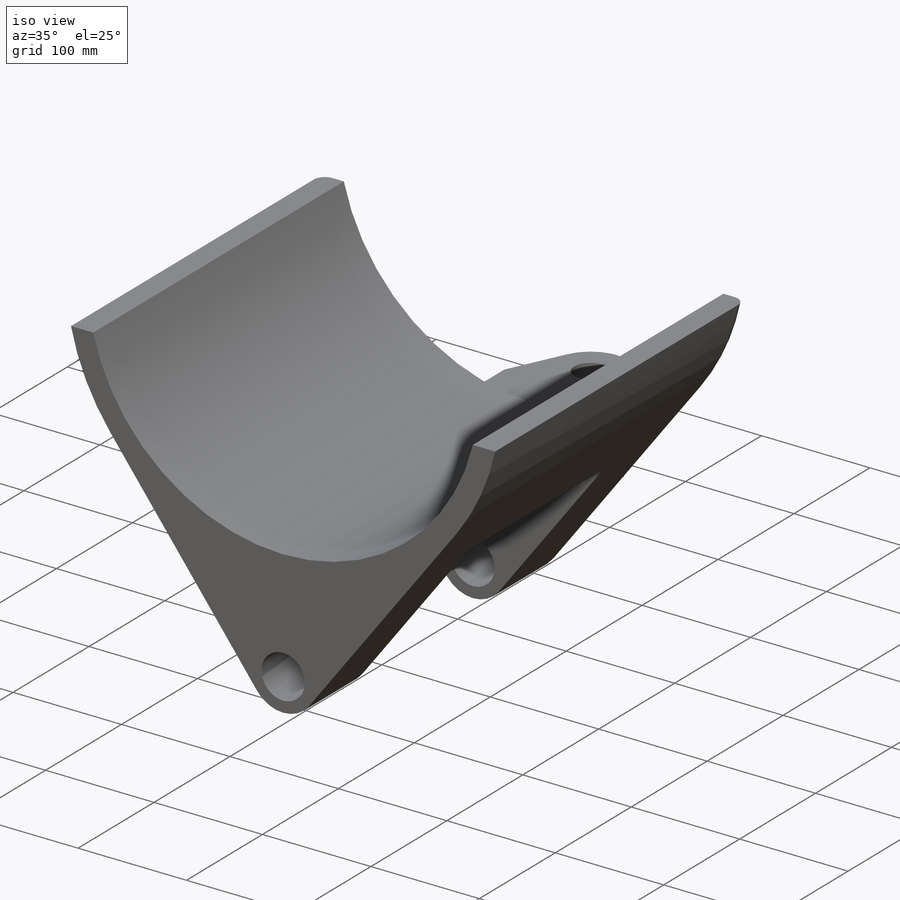
[diagram: iso view]
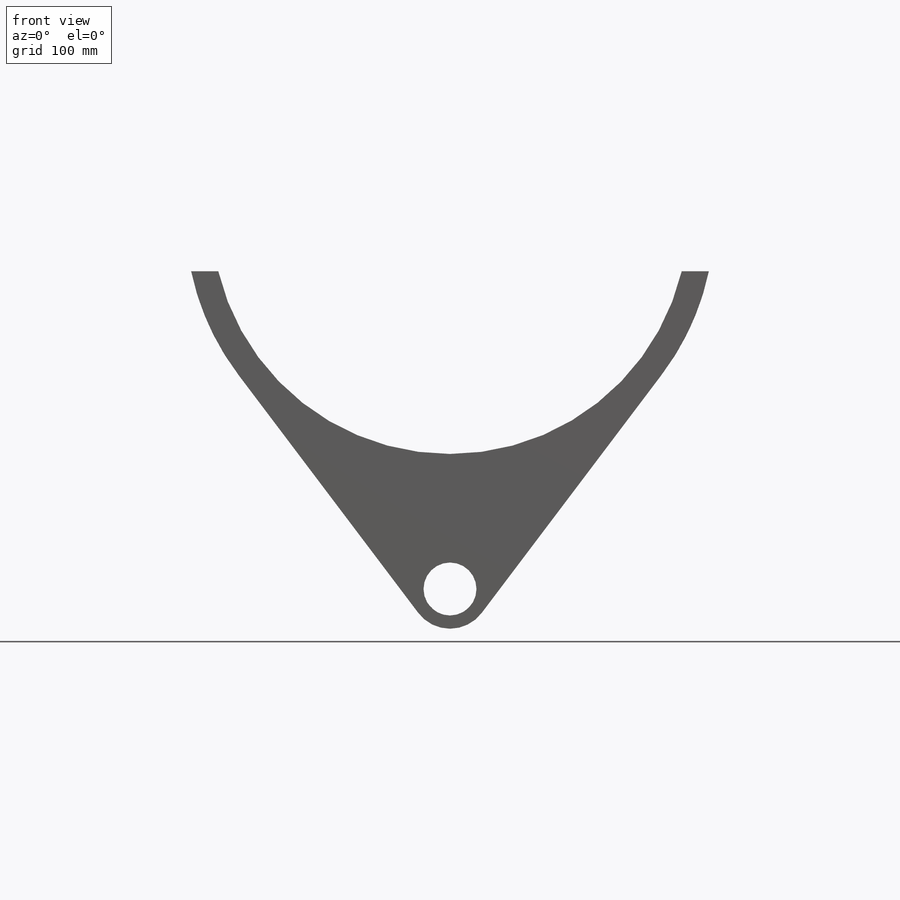
[diagram: front view]
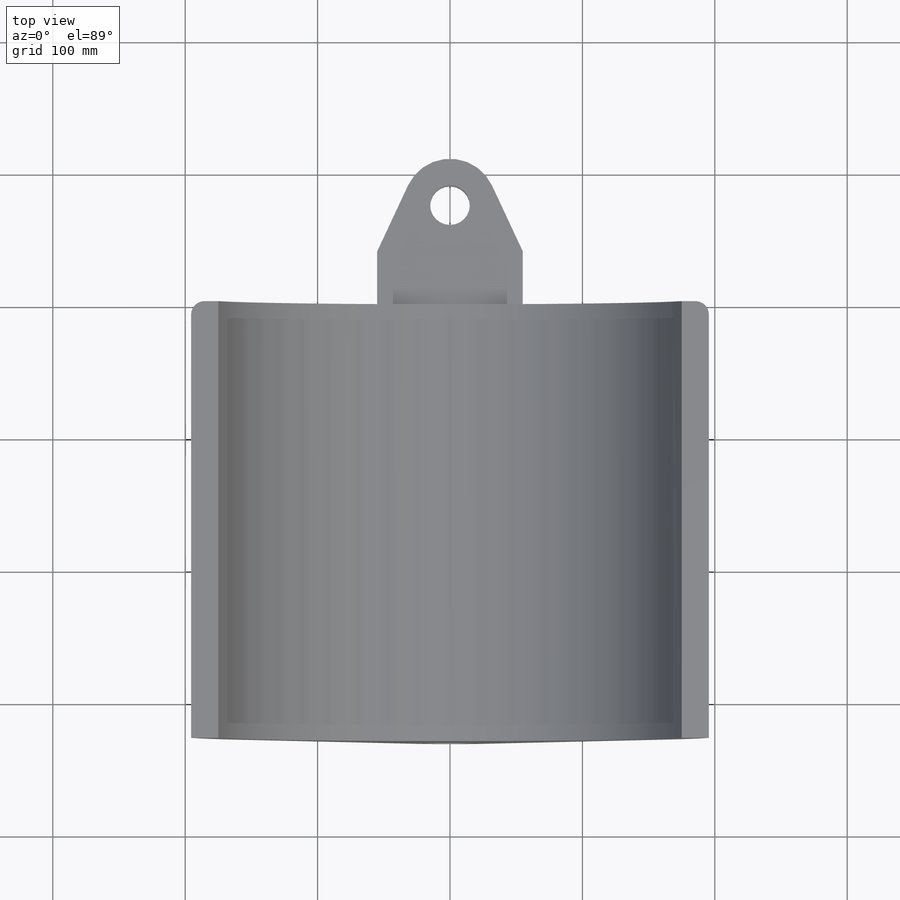
[diagram: top view]
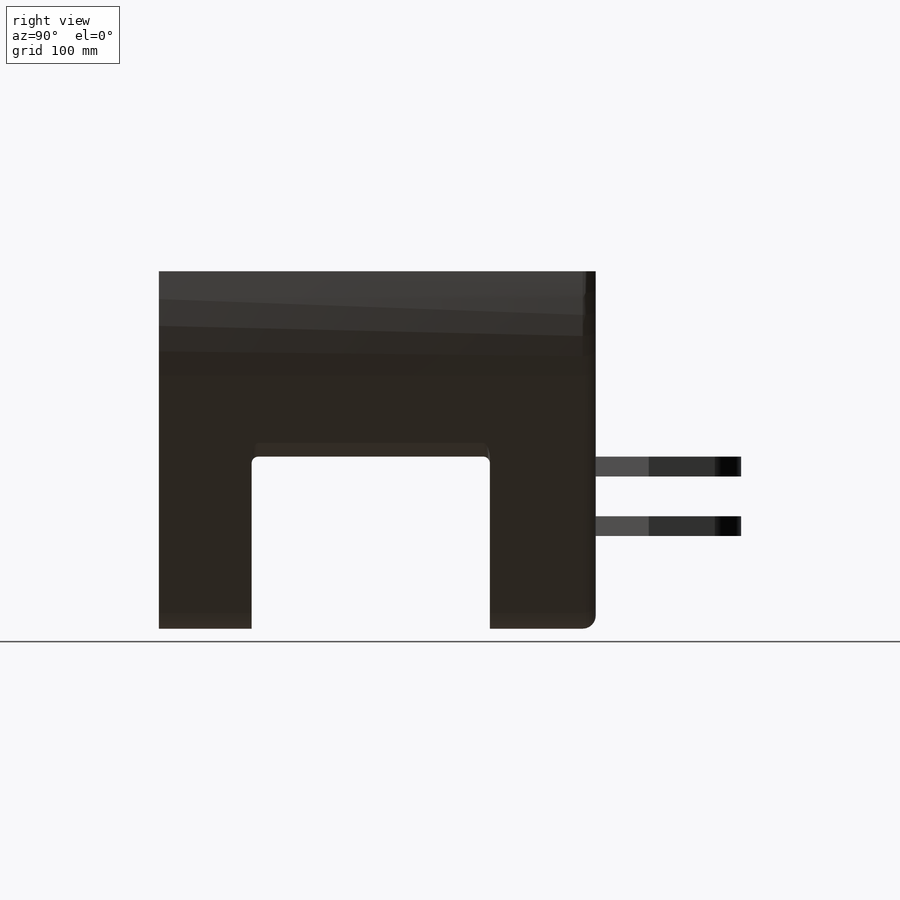
[diagram: right view]
SOLIDWORKS PART (.sldprt)
format: sldprt  version: not decoded by parser v0  size: 248,832 bytes
history: native  units: mm
features: sketch x5, extrude x2, cut_extrude x2, plane x2, fillet x2, material x1 (+13 scaffold rows collapsed)
feature tree (27):
  scaffold x13  (default folders/planes/origin — collapsed)
  material  "Material <not specified>"
  sketch  "Sketch9"  dims[c1.D2=40.0mm c1.D3=30.0mm c1.D4=180.0mm c1.D5=200.0mm c1.D6=200.0mm c1.D1=240.0mm c2.D2=~42.06346mm c2.D6=206.3882mm c3.D6=~34.249357deg c4.D6=42.0mm]
  extrude  "Boss-Extrude4"  Depth=330mm
  sketch  "Sketch14"  dims[D4=30.0mm D5=35.0mm D1=110.0mm D2=110.0mm D3=40.0mm]
  extrude  "Boss-Extrude5"  Depth=60mm
  sketch  "Sketch20"  dims[D1=15.0mm D2=15.0mm]
  cut_extrude  "Cut-Extrude3"  [1 undecoded]
  plane  "Plane9"
  sketch  "Sketch27"  dims[D1=100.0mm D2=30.0mm]
  cut_extrude  "Cut-Extrude4"  Depth=180mm
  plane  "Plane10"
  sketch  "Sketch35"  dims[D1=440.0mm D2=280.0mm D3=160.0mm D4=160.0mm D5=100.0mm D6=80.0mm D7=20.0mm]
  fillet  "Fillet1"  Radius=5mm
  fillet  "Fillet2"  Radius=10mm
decode coverage: 10 of 11 modeling features carry decoded parameters
note: ~ marks probable driven/reference dimensions
note: 1 parameter value undecoded
note: suppression state not decoded; provenance and decode notes live in map.json
